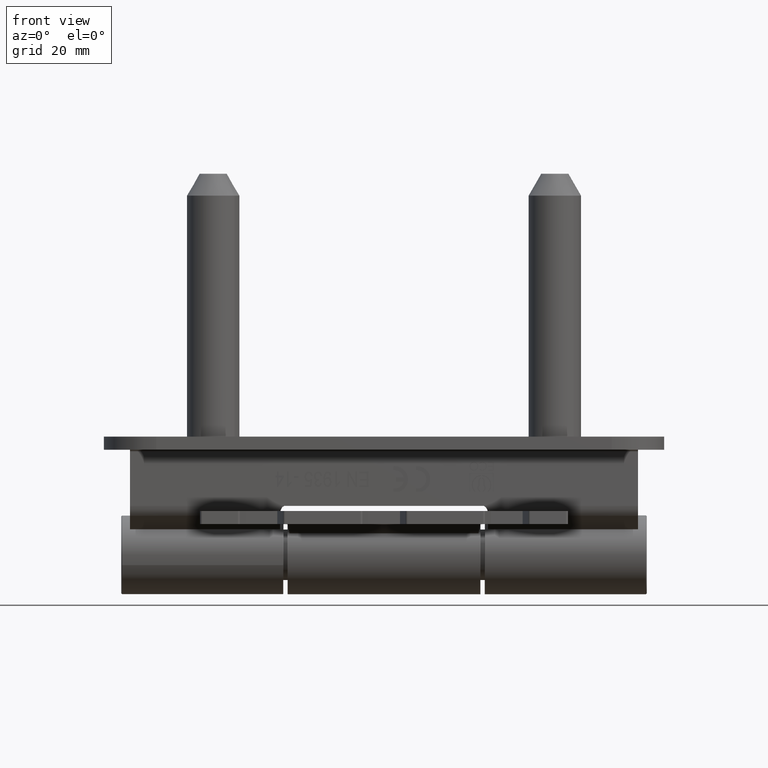
[diagram: clean part render]
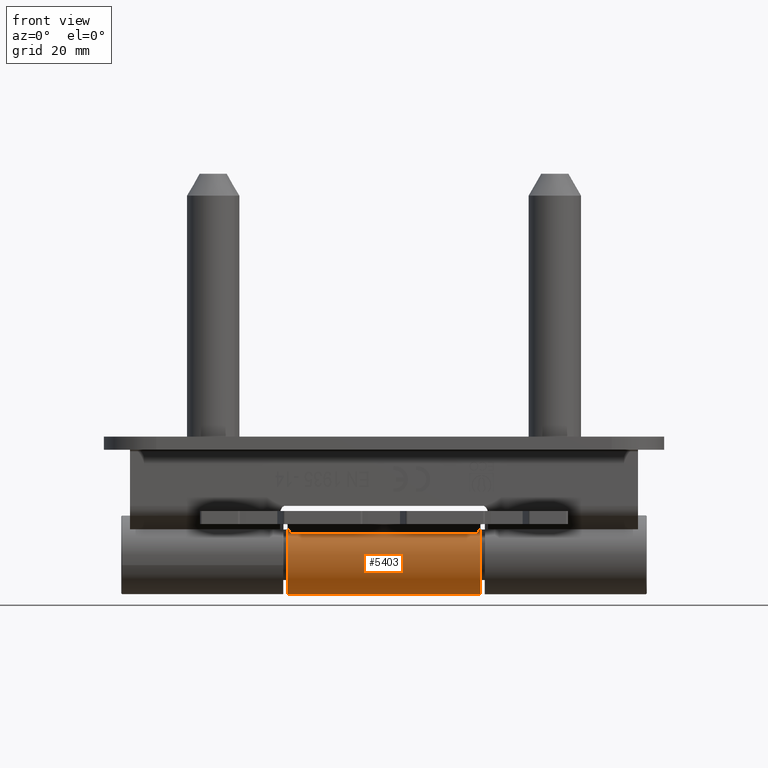
[diagram: same view with one face highlighted and labeled with its STEP entity id]
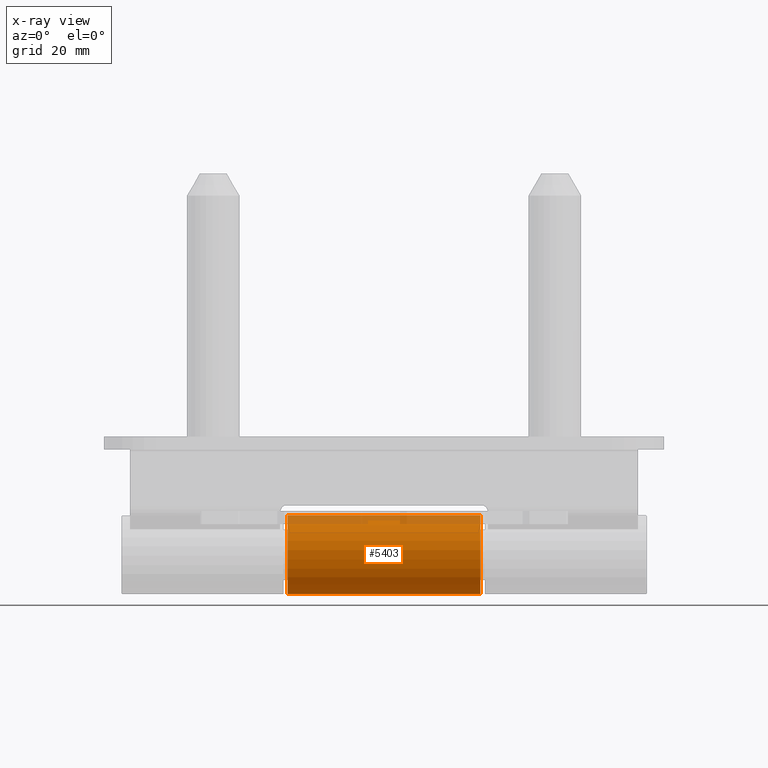
[diagram: x-ray of the same camera — body ghosted, the highlighted face saturated]
A machine part, front view. The second image highlights one B-rep face of the part: STEP entity #5403.
The next image is the same camera in x-ray: the body ghosted, the highlighted face saturated — about 11% of this face is hidden behind the body in this view.
In plain terms, the highlighted cylindrical surface (partial cylindrical patch) has radius 9 mm, axis along (1, 0, 0).
Its self-contained STEP definition (entity closure, byte-faithful):
#398 = VERTEX_POINT ( 'NONE', #9405 ) ;
#1316 = VERTEX_POINT ( 'NONE', #17084 ) ;
#1550 = EDGE_CURVE ( 'NONE', #4961, #1316, #4093, .T. ) ;
#2531 = ORIENTED_EDGE ( 'NONE', *, *, #16349, .T. ) ;
#3251 = CARTESIAN_POINT ( 'NONE',  ( -22.00000000000000000, 0.000000000000000000, 0.000000000000000000 ) ) ;
#3333 = ORIENTED_EDGE ( 'NONE', *, *, #1550, .F. ) ;
#3649 = CIRCLE ( 'NONE', #5962, 9.000000000000010658 ) ;
#4093 = CIRCLE ( 'NONE', #14278, 9.000000000000010658 ) ;
#4319 = EDGE_LOOP ( 'NONE', ( #16709, #2531, #8974, #3333 ) ) ;
#4961 = VERTEX_POINT ( 'NONE', #8785 ) ;
#5403 = ADVANCED_FACE ( 'NONE', ( #8490 ), #11240, .T. ) ;
#5962 = AXIS2_PLACEMENT_3D ( 'NONE', #3251, #15079, #6435 ) ;
#6180 = CARTESIAN_POINT ( 'NONE',  ( 34.99999999999999289, 1.102182119232620475E-15, 9.000000000000010658 ) ) ;
#6435 = DIRECTION ( 'NONE',  ( 0.000000000000000000, -1.232595164407829413E-31, -1.000000000000000000 ) ) ;
#6546 = VECTOR ( 'NONE', #14469, 1000.000000000000000 ) ;
#6921 = DIRECTION ( 'NONE',  ( 0.000000000000000000, -1.232595164407829413E-31, -1.000000000000000000 ) ) ;
#8490 = FACE_OUTER_BOUND ( 'NONE', #4319, .T. ) ;
#8741 = CARTESIAN_POINT ( 'NONE',  ( -22.00000000000000000, 1.102182119232618108E-15, 9.000000000000000000 ) ) ;
#8785 = CARTESIAN_POINT ( 'NONE',  ( 22.00000000000000000, 1.102182119232618108E-15, 9.000000000000000000 ) ) ;
#8922 = LINE ( 'NONE', #6180, #6546 ) ;
#8974 = ORIENTED_EDGE ( 'NONE', *, *, #12722, .T. ) ;
#9044 = LINE ( 'NONE', #12860, #11723 ) ;
#9405 = CARTESIAN_POINT ( 'NONE',  ( -22.00000000000000000, -1.109335647967047851E-30, -9.000000000000010658 ) ) ;
#9681 = DIRECTION ( 'NONE',  ( 1.000000000000000000, 1.969277423625663140E-32, 2.588449845256444987E-31 ) ) ;
#11240 = CYLINDRICAL_SURFACE ( 'NONE', #16531, 9.000000000000010658 ) ;
#11723 = VECTOR ( 'NONE', #17234, 1000.000000000000000 ) ;
#12157 = DIRECTION ( 'NONE',  ( 1.000000000000000000, 1.969277423625663140E-32, 2.588449845256444987E-31 ) ) ;
#12577 = DIRECTION ( 'NONE',  ( 0.000000000000000000, -1.232595164407829413E-31, -1.000000000000000000 ) ) ;
#12722 = EDGE_CURVE ( 'NONE', #398, #1316, #9044, .T. ) ;
#12860 = CARTESIAN_POINT ( 'NONE',  ( 34.99999999999999289, -1.109335647967047851E-30, -9.000000000000010658 ) ) ;
#14278 = AXIS2_PLACEMENT_3D ( 'NONE', #15482, #12157, #6921 ) ;
#14469 = DIRECTION ( 'NONE',  ( 1.000000000000000000, 1.969277423625663140E-32, 2.588449845256444987E-31 ) ) ;
#15079 = DIRECTION ( 'NONE',  ( 1.000000000000000000, 1.969277423625663140E-32, 2.588449845256444987E-31 ) ) ;
#15406 = CARTESIAN_POINT ( 'NONE',  ( 34.99999999999999289, 0.000000000000000000, 0.000000000000000000 ) ) ;
#15482 = CARTESIAN_POINT ( 'NONE',  ( 22.00000000000000000, 0.000000000000000000, 0.000000000000000000 ) ) ;
#16055 = EDGE_CURVE ( 'NONE', #17747, #4961, #8922, .T. ) ;
#16349 = EDGE_CURVE ( 'NONE', #17747, #398, #3649, .T. ) ;
#16531 = AXIS2_PLACEMENT_3D ( 'NONE', #15406, #9681, #12577 ) ;
#16709 = ORIENTED_EDGE ( 'NONE', *, *, #16055, .F. ) ;
#17084 = CARTESIAN_POINT ( 'NONE',  ( 22.00000000000000000, -1.109335647967047851E-30, -9.000000000000010658 ) ) ;
#17234 = DIRECTION ( 'NONE',  ( 1.000000000000000000, 1.969277423625663140E-32, 2.588449845256444987E-31 ) ) ;
#17747 = VERTEX_POINT ( 'NONE', #8741 ) ;